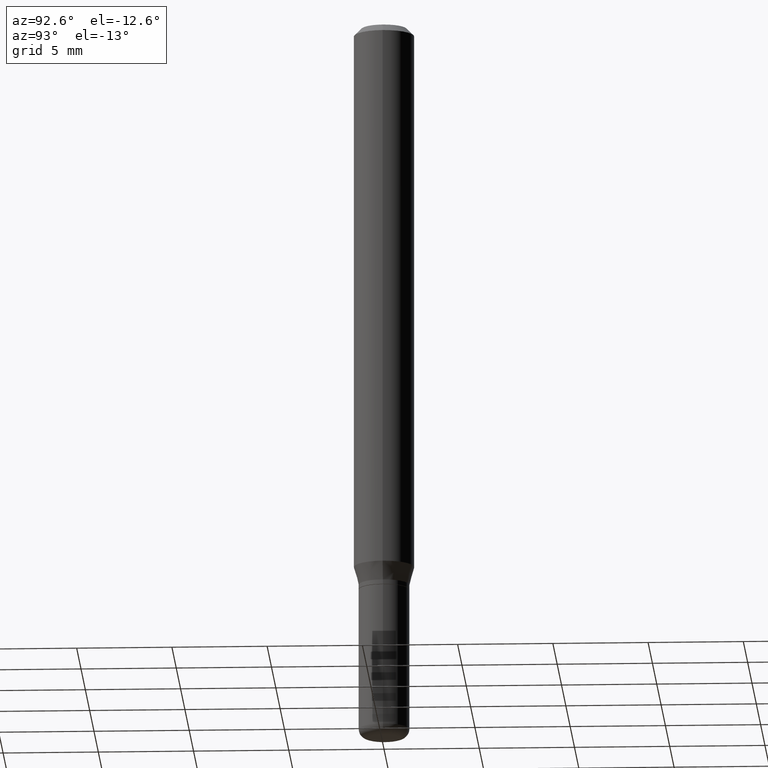
[diagram: clean part render]
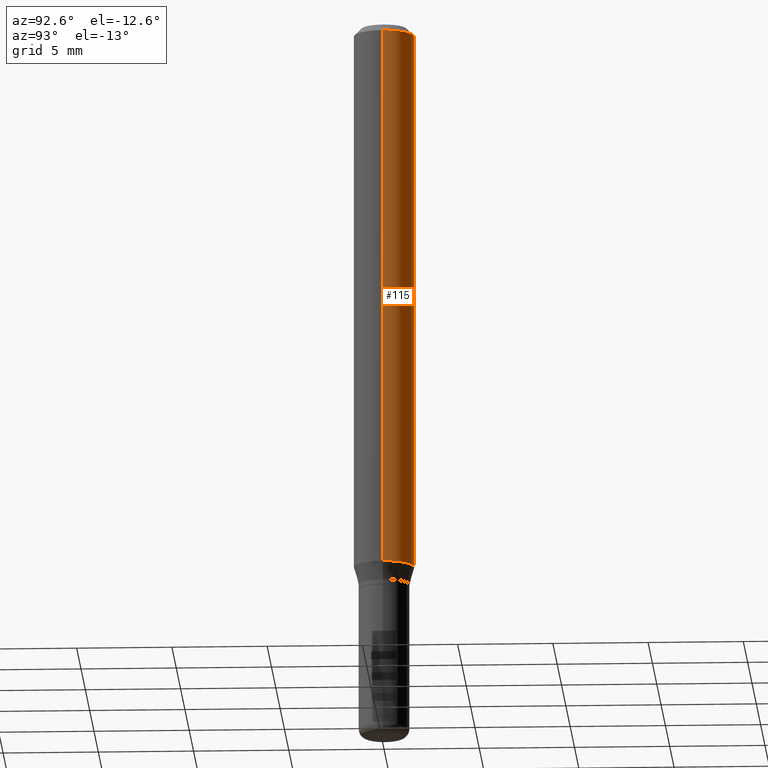
[diagram: same view with one face highlighted and labeled with its STEP entity id]
A machine part, auxiliary view. The second image highlights one B-rep face of the part: STEP entity #115.
In plain terms, the highlighted cylindrical surface (edge-blend (fillet) strip) has radius 1.5875 mm, axis along (-0, 0, 1).
Its self-contained STEP definition (entity closure, byte-faithful):
#2 = ORIENTED_EDGE ( 'NONE', *, *, #431, .F. ) ;
#36 = CARTESIAN_POINT ( 'NONE',  ( -0.06250000000000000000, 4.440892098500626162E-16, -3.074334431409316114E-30 ) ) ;
#54 = AXIS2_PLACEMENT_3D ( 'NONE', #135, #373, #169 ) ;
#71 = ORIENTED_EDGE ( 'NONE', *, *, #129, .T. ) ;
#92 = DIRECTION ( 'NONE',  ( 1.000000000000000000, -6.982962677686270655E-15, 0.000000000000000000 ) ) ;
#96 = ORIENTED_EDGE ( 'NONE', *, *, #402, .T. ) ;
#112 = DIRECTION ( 'NONE',  ( -2.445468806185136597E-29, 3.491481338843145583E-15, 1.000000000000000000 ) ) ;
#115 = ADVANCED_FACE ( 'NONE', ( #368 ), #331, .T. ) ;
#116 = CARTESIAN_POINT ( 'NONE',  ( 3.668203209277632395E-31, -5.237222008264614861E-17, -0.01499999999999970281 ) ) ;
#129 = EDGE_CURVE ( 'NONE', #347, #319, #253, .T. ) ;
#131 = DIRECTION ( 'NONE',  ( -2.445468806185136597E-29, 3.491481338843145583E-15, 1.000000000000000000 ) ) ;
#135 = CARTESIAN_POINT ( 'NONE',  ( 0.000000000000000000, 0.000000000000000000, 0.000000000000000000 ) ) ;
#169 = DIRECTION ( 'NONE',  ( 1.000000000000000000, -6.982962677686266711E-15, 4.876176775795935793E-29 ) ) ;
#179 = CARTESIAN_POINT ( 'NONE',  ( 0.06250000000000000000, -4.364351673553916694E-16, 3.047610484872459871E-30 ) ) ;
#197 = DIRECTION ( 'NONE',  ( 1.000000000000000000, -6.982962677686266711E-15, 0.000000000000000000 ) ) ;
#231 = CARTESIAN_POINT ( 'NONE',  ( -0.06250000000000000000, -1.568190258010402571E-15, -0.01499999999999970281 ) ) ;
#253 = CIRCLE ( 'NONE', #315, 0.06250000000000000000 ) ;
#257 = CARTESIAN_POINT ( 'NONE',  ( -0.06250000000000000000, -3.528097505788221863E-15, -1.137679491924311392 ) ) ;
#261 = EDGE_LOOP ( 'NONE', ( #71, #96, #2, #518 ) ) ;
#271 = EDGE_CURVE ( 'NONE', #347, #338, #416, .T. ) ;
#304 = CARTESIAN_POINT ( 'NONE',  ( 0.06250000000000000000, -4.408621882993675754E-15, -1.137679491924311392 ) ) ;
#315 = AXIS2_PLACEMENT_3D ( 'NONE', #407, #131, #92 ) ;
#319 = VERTEX_POINT ( 'NONE', #257 ) ;
#331 = CYLINDRICAL_SURFACE ( 'NONE', #54, 0.06250000000000000000 ) ;
#338 = VERTEX_POINT ( 'NONE', #385 ) ;
#347 = VERTEX_POINT ( 'NONE', #304 ) ;
#368 = FACE_OUTER_BOUND ( 'NONE', #261, .T. ) ;
#373 = DIRECTION ( 'NONE',  ( -2.445468806185136597E-29, 3.491481338843145583E-15, 1.000000000000000000 ) ) ;
#385 = CARTESIAN_POINT ( 'NONE',  ( 0.06250000000000000000, -4.888073874380378612E-16, -0.01499999999999970281 ) ) ;
#392 = LINE ( 'NONE', #36, #484 ) ;
#402 = EDGE_CURVE ( 'NONE', #319, #485, #392, .T. ) ;
#407 = CARTESIAN_POINT ( 'NONE',  ( 2.782159708937458673E-29, -3.972186715638284085E-15, -1.137679491924311392 ) ) ;
#416 = LINE ( 'NONE', #179, #511 ) ;
#419 = CIRCLE ( 'NONE', #440, 0.06250000000000000000 ) ;
#431 = EDGE_CURVE ( 'NONE', #338, #485, #419, .T. ) ;
#440 = AXIS2_PLACEMENT_3D ( 'NONE', #116, #112, #197 ) ;
#476 = DIRECTION ( 'NONE',  ( -2.445468806185136877E-29, 3.491481338843145188E-15, 1.000000000000000000 ) ) ;
#484 = VECTOR ( 'NONE', #476, 39.37007874015748143 ) ;
#485 = VERTEX_POINT ( 'NONE', #231 ) ;
#505 = DIRECTION ( 'NONE',  ( -2.445468806185136877E-29, 3.491481338843145188E-15, 1.000000000000000000 ) ) ;
#511 = VECTOR ( 'NONE', #505, 39.37007874015748143 ) ;
#518 = ORIENTED_EDGE ( 'NONE', *, *, #271, .F. ) ;